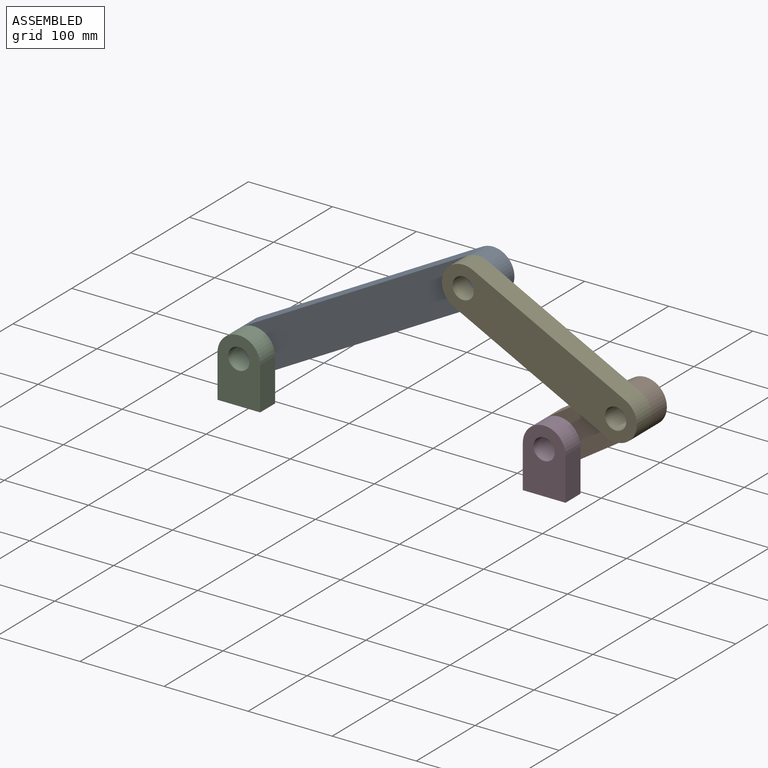
[diagram: assembled view]
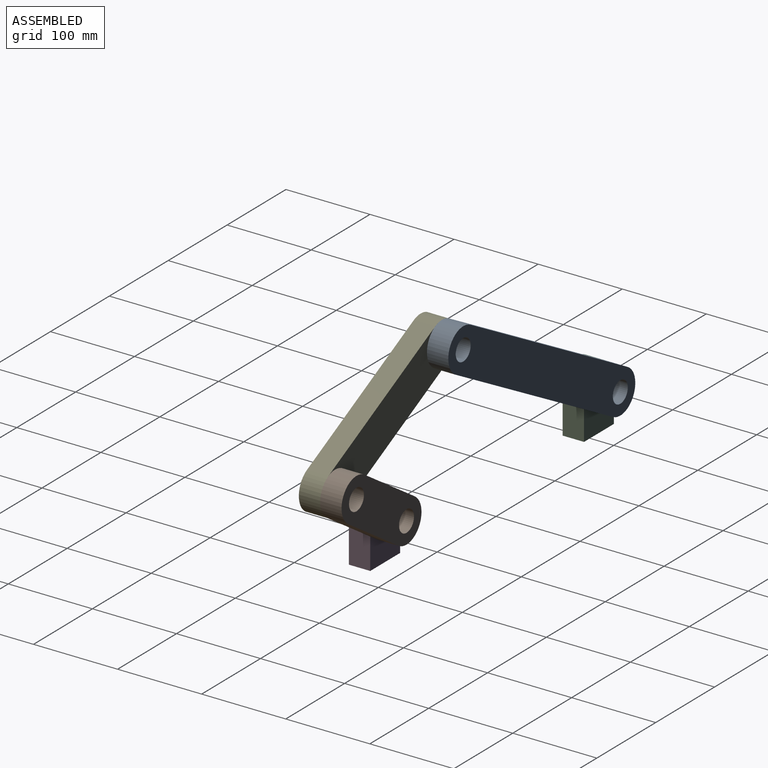
[diagram: assembled view, second angle]
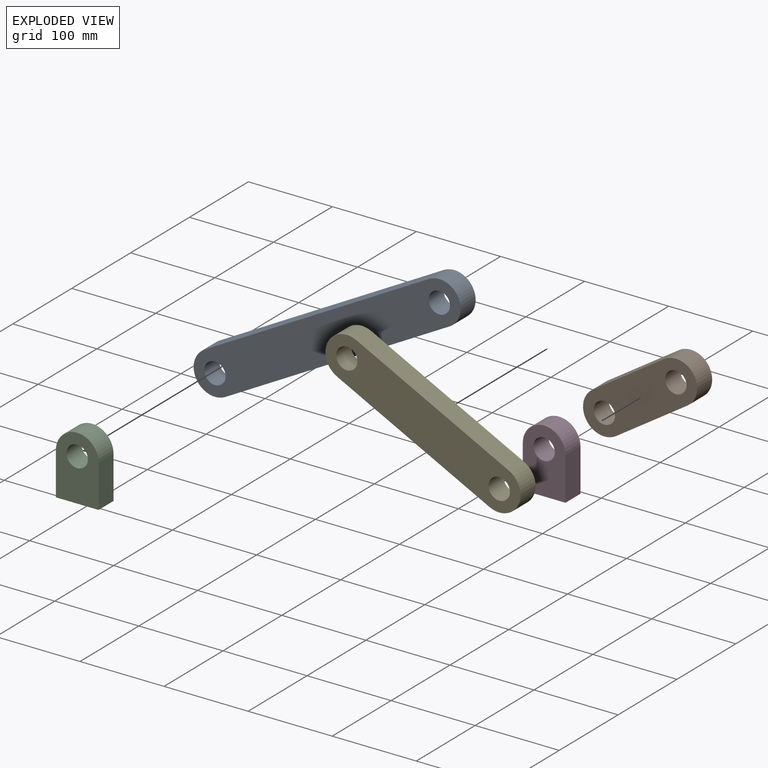
[diagram: exploded view]
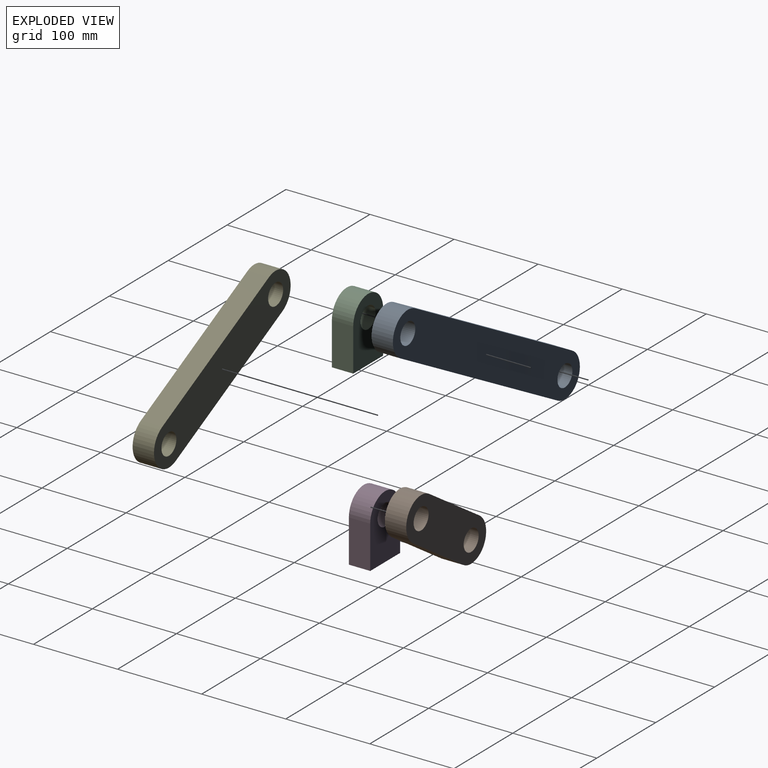
[diagram: exploded view, second angle]
ASSEMBLY  parts=5 mates=4
PART A: 8 faces, bbox 50.8x25.4x355.6 mm
  f0: plane 304.8x25.4mm, normal (-1,0,0), area 7741.9mm2, adj f1,f5,f6,f7
  f1: cylinder r=25.4mm len=50.8mm, axis (0,1,0), area 2026.8mm2, adj f0,f2,f6,f7
  f2: plane 304.8x25.4mm, normal (1,0,0), area 7741.9mm2, adj f1,f5,f6,f7
  f3: cylinder r=12.7mm len=25.4mm, axis (0,1,0), area 2026.8mm2, adj f6,f7
  f4: cylinder r=12.7mm len=25.4mm, axis (0,1,0), area 2026.8mm2, adj f6,f7
  f5: cylinder r=25.4mm len=50.8mm, axis (0,1,0), area 2026.8mm2, adj f0,f2,f6,f7
  f6: plane 355.6x50.8mm, normal (0,-1,0), area 16497.3mm2, adj f0,f1,f2,f3,f4,f5
  f7: plane 355.6x50.8mm, normal (0,1,0), area 16497.3mm2, adj f0,f1,f2,f3,f4,f5
PART B: 8 faces, bbox 50.8x25.4x152.4 mm
  f0: plane 101.6x25.4mm, normal (-1,0,0), area 2580.6mm2, adj f1,f5,f6,f7
  f1: cylinder r=25.4mm len=50.8mm, axis (0,1,0), area 2026.8mm2, adj f0,f2,f6,f7
  f2: plane 101.6x25.4mm, normal (1,0,0), area 2580.6mm2, adj f1,f5,f6,f7
  f3: cylinder r=12.7mm len=25.4mm, axis (0,1,0), area 2026.8mm2, adj f6,f7
  f4: cylinder r=12.7mm len=25.4mm, axis (0,1,0), area 2026.8mm2, adj f6,f7
  f5: cylinder r=25.4mm len=50.8mm, axis (0,1,0), area 2026.8mm2, adj f0,f2,f6,f7
  f6: plane 152.4x50.8mm, normal (0,-1,0), area 6174.7mm2, adj f0,f1,f2,f3,f4,f5
  f7: plane 152.4x50.8mm, normal (0,1,0), area 6174.7mm2, adj f0,f1,f2,f3,f4,f5
PART C: 7 faces, bbox 50.8x25.4x76.2 mm
  f0: plane 50.8x25.4mm, normal (0,0,-1), area 1290.3mm2, adj f1,f4,f5,f6
  f1: plane 50.8x25.4mm, normal (1,0,0), area 1290.3mm2, adj f0,f2,f5,f6
  f2: cylinder r=25.4mm len=50.8mm, axis (0,1,0), area 2026.8mm2, adj f1,f4,f5,f6
  f3: cylinder r=12.7mm len=25.4mm, axis (0,1,0), area 2026.8mm2, adj f5,f6
  f4: plane 50.8x25.4mm, normal (-1,0,0), area 1290.3mm2, adj f0,f2,f5,f6
  f5: plane 76.2x50.8mm, normal (0,-1,0), area 3087.3mm2, adj f0,f1,f2,f3,f4
  f6: plane 76.2x50.8mm, normal (0,1,0), area 3087.3mm2, adj f0,f1,f2,f3,f4
PART D: same geometry as C
PART E: 8 faces, bbox 50.8x25.4x254 mm
  f0: plane 203.2x25.4mm, normal (-1,0,0), area 5161.3mm2, adj f1,f5,f6,f7
  f1: cylinder r=25.4mm len=50.8mm, axis (0,1,0), area 2026.8mm2, adj f0,f2,f6,f7
  f2: plane 203.2x25.4mm, normal (1,0,0), area 5161.3mm2, adj f1,f5,f6,f7
  f3: cylinder r=12.7mm len=25.4mm, axis (0,1,0), area 2026.8mm2, adj f6,f7
  f4: cylinder r=12.7mm len=25.4mm, axis (0,1,0), area 2026.8mm2, adj f6,f7
  f5: cylinder r=25.4mm len=50.8mm, axis (0,1,0), area 2026.8mm2, adj f0,f2,f6,f7
  f6: plane 254x50.8mm, normal (0,-1,0), area 11336mm2, adj f0,f1,f2,f3,f4,f5
  f7: plane 254x50.8mm, normal (0,1,0), area 11336mm2, adj f0,f1,f2,f3,f4,f5
PLACE A rot(axis=(0,1,0),61.1deg) t=(-133.9,7.35,146.41)mm
PLACE B rot(axis=(0,1,0),56.8deg) t=(47.44,7.35,54.73)mm
PLACE C t=(-400.76,-18.05,-0.87)mm fixed
PLACE D t=(-37.59,-18.05,-0.87)mm fixed
PLACE E rot(axis=(0,1,0),116.8deg) t=(47.44,-18.05,54.73)mm
MATE revolute E.f3 <-> B.f3  axis (0,1,0) through (47.44,-18.05,54.73)mm
MATE revolute B.f1 <-> D.f2  axis (0,1,0) through (-37.59,-18.05,-0.87)mm
MATE revolute A.f3 <-> E.f1  axis (0,1,0) through (-133.9,-18.05,146.41)mm
MATE revolute A.f1 <-> C.f2  axis (0,1,0) through (-400.76,-18.05,-0.87)mm
